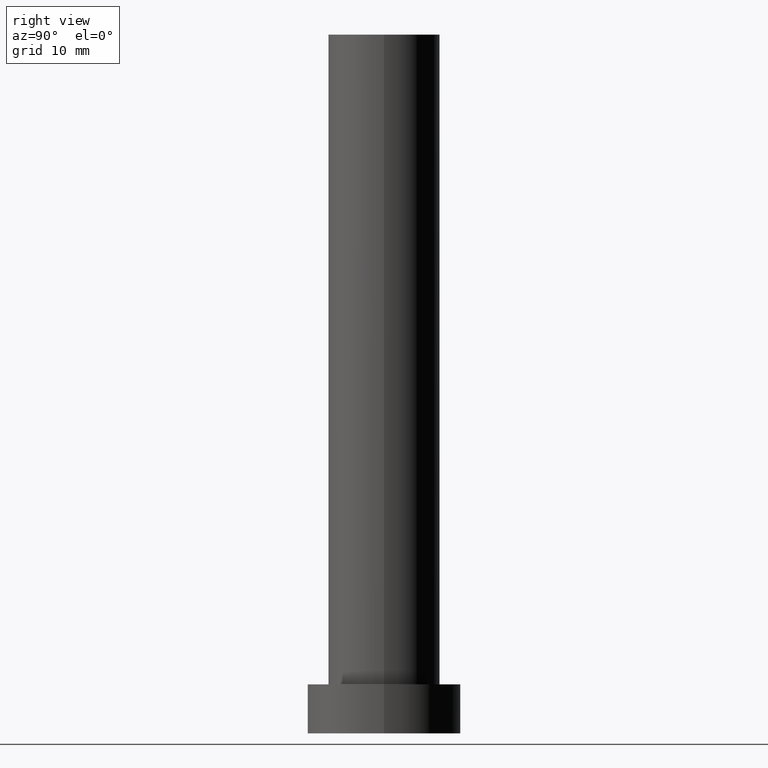
[diagram: clean part render]
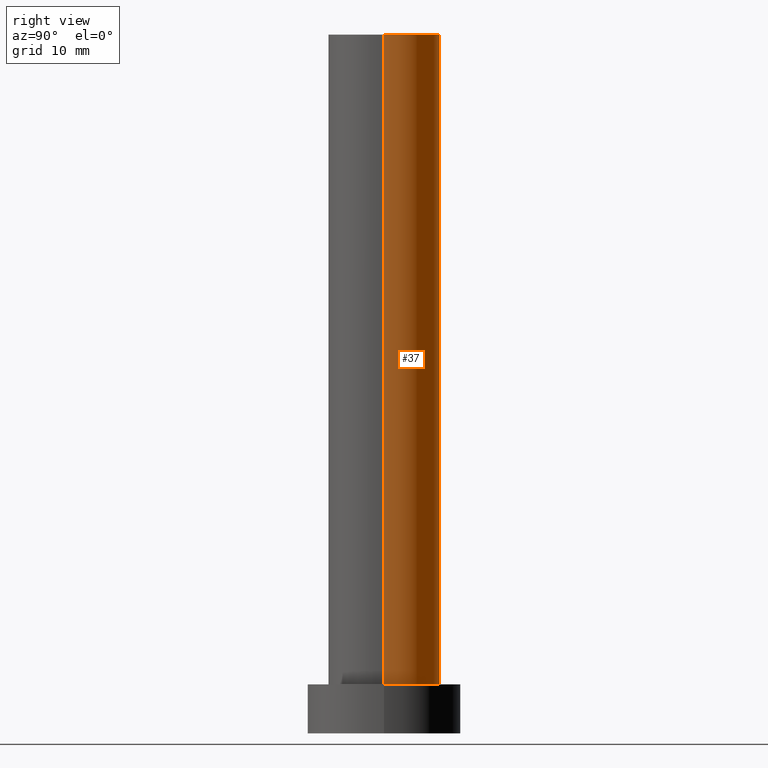
[diagram: same view with one face highlighted and labeled with its STEP entity id]
A machine part, right view. The second image highlights one B-rep face of the part: STEP entity #37.
In plain terms, the highlighted cylindrical surface (partial cylindrical patch) has radius 8 mm, axis along (-0, -0, -1).
Its self-contained STEP definition (entity closure, byte-faithful):
#10 = CARTESIAN_POINT ( 'NONE',  ( 0.000000000000000000, 0.000000000000000000, 7.000000000000000000 ) ) ;
#17 = EDGE_CURVE ( 'NONE', #147, #149, #126, .T. ) ;
#26 = CARTESIAN_POINT ( 'NONE',  ( -8.000000000000000000, 0.000000000000000000, 100.0000000000000000 ) ) ;
#36 = DIRECTION ( 'NONE',  ( 1.000000000000000000, 0.000000000000000000, 0.000000000000000000 ) ) ;
#37 = ADVANCED_FACE ( 'NONE', ( #188 ), #145, .T. ) ;
#40 = ORIENTED_EDGE ( 'NONE', *, *, #17, .F. ) ;
#46 = CARTESIAN_POINT ( 'NONE',  ( 8.000000000000000000, 9.797174393178823685E-16, 100.0000000000000000 ) ) ;
#50 = DIRECTION ( 'NONE',  ( 0.000000000000000000, 0.000000000000000000, 1.000000000000000000 ) ) ;
#54 = LINE ( 'NONE', #186, #82 ) ;
#56 = CIRCLE ( 'NONE', #141, 8.000000000000000000 ) ;
#64 = CARTESIAN_POINT ( 'NONE',  ( 0.000000000000000000, 0.000000000000000000, 100.0000000000000000 ) ) ;
#71 = CIRCLE ( 'NONE', #221, 8.000000000000000000 ) ;
#74 = EDGE_LOOP ( 'NONE', ( #78, #203, #154, #40 ) ) ;
#78 = ORIENTED_EDGE ( 'NONE', *, *, #161, .F. ) ;
#79 = AXIS2_PLACEMENT_3D ( 'NONE', #205, #185, #165 ) ;
#80 = VERTEX_POINT ( 'NONE', #46 ) ;
#81 = EDGE_CURVE ( 'NONE', #162, #149, #56, .T. ) ;
#82 = VECTOR ( 'NONE', #209, 1000.000000000000000 ) ;
#98 = DIRECTION ( 'NONE',  ( 1.000000000000000000, 0.000000000000000000, 0.000000000000000000 ) ) ;
#103 = VECTOR ( 'NONE', #190, 1000.000000000000000 ) ;
#126 = LINE ( 'NONE', #211, #103 ) ;
#135 = CARTESIAN_POINT ( 'NONE',  ( -8.000000000000000000, 0.000000000000000000, 7.000000000000000000 ) ) ;
#141 = AXIS2_PLACEMENT_3D ( 'NONE', #10, #50, #98 ) ;
#144 = DIRECTION ( 'NONE',  ( 0.000000000000000000, 0.000000000000000000, 1.000000000000000000 ) ) ;
#145 = CYLINDRICAL_SURFACE ( 'NONE', #79, 8.000000000000000000 ) ;
#147 = VERTEX_POINT ( 'NONE', #26 ) ;
#149 = VERTEX_POINT ( 'NONE', #135 ) ;
#154 = ORIENTED_EDGE ( 'NONE', *, *, #81, .T. ) ;
#161 = EDGE_CURVE ( 'NONE', #80, #147, #71, .T. ) ;
#162 = VERTEX_POINT ( 'NONE', #219 ) ;
#165 = DIRECTION ( 'NONE',  ( -1.000000000000000000, 0.000000000000000000, 0.000000000000000000 ) ) ;
#185 = DIRECTION ( 'NONE',  ( -0.000000000000000000, -0.000000000000000000, -1.000000000000000000 ) ) ;
#186 = CARTESIAN_POINT ( 'NONE',  ( 8.000000000000000000, 9.797174393178823685E-16, 100.0000000000000000 ) ) ;
#188 = FACE_OUTER_BOUND ( 'NONE', #74, .T. ) ;
#190 = DIRECTION ( 'NONE',  ( -0.000000000000000000, -0.000000000000000000, -1.000000000000000000 ) ) ;
#203 = ORIENTED_EDGE ( 'NONE', *, *, #253, .T. ) ;
#205 = CARTESIAN_POINT ( 'NONE',  ( 0.000000000000000000, 0.000000000000000000, 100.0000000000000000 ) ) ;
#209 = DIRECTION ( 'NONE',  ( -0.000000000000000000, -0.000000000000000000, -1.000000000000000000 ) ) ;
#211 = CARTESIAN_POINT ( 'NONE',  ( -8.000000000000000000, 0.000000000000000000, 100.0000000000000000 ) ) ;
#219 = CARTESIAN_POINT ( 'NONE',  ( 8.000000000000000000, 9.797174393178823685E-16, 7.000000000000000000 ) ) ;
#221 = AXIS2_PLACEMENT_3D ( 'NONE', #64, #144, #36 ) ;
#253 = EDGE_CURVE ( 'NONE', #80, #162, #54, .T. ) ;